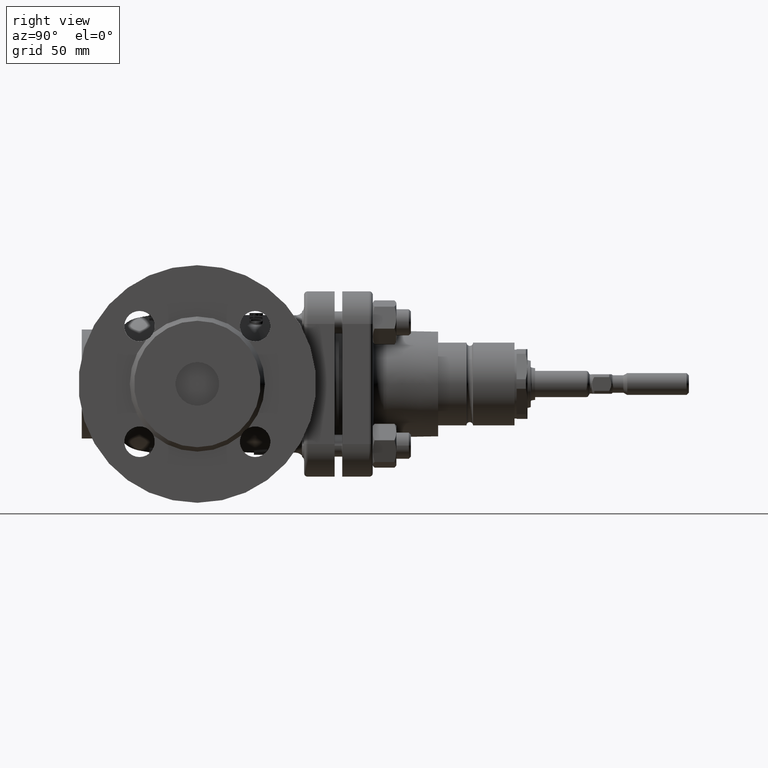
[diagram: clean part render]
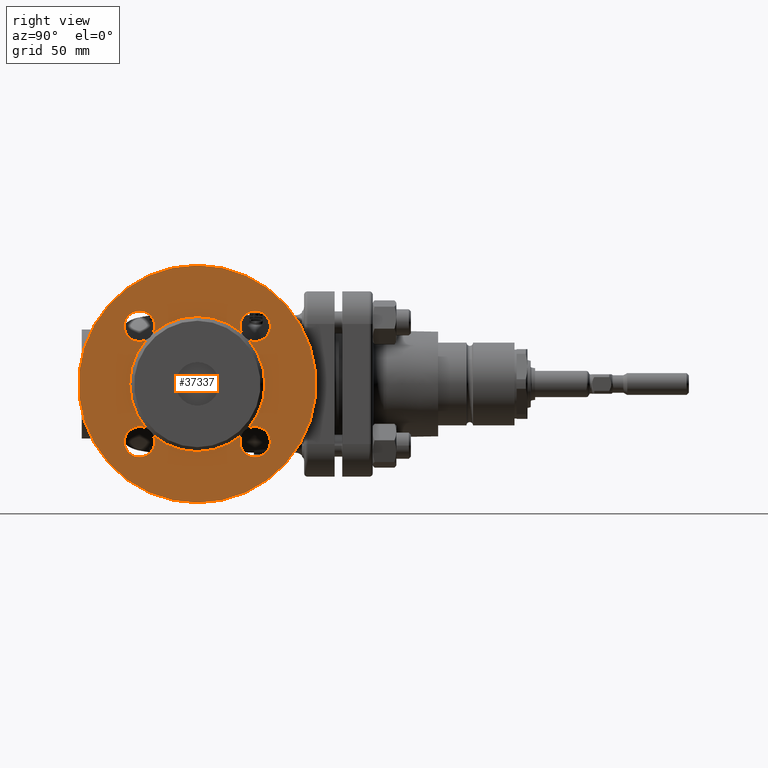
[diagram: same view with one face highlighted and labeled with its STEP entity id]
A machine part, right view. The second image highlights one B-rep face of the part: STEP entity #37337.
In plain terms, the highlighted planar face has unit normal (-1, 0, 0).
Its self-contained STEP definition (entity closure, byte-faithful):
#416 = CARTESIAN_POINT ( 'NONE',  ( 72.99999999999998600, -26.51650429449557900, -19.51650429449547300 ) ) ;
#1306 = AXIS2_PLACEMENT_3D ( 'NONE', #67372, #136699, #55719 ) ;
#2818 = EDGE_CURVE ( 'NONE', #44392, #64396, #104716, .T. ) ;
#2886 = DIRECTION ( 'NONE',  ( -1.000000000000000000, 0.0000000000000000000, 0.0000000000000000000 ) ) ;
#3361 = AXIS2_PLACEMENT_3D ( 'NONE', #30906, #111851, #42545 ) ;
#3386 = CARTESIAN_POINT ( 'NONE',  ( 72.99999999999998600, 23.52578713925625200, -20.18755407369614800 ) ) ;
#3436 = EDGE_CURVE ( 'NONE', #103085, #17519, #128215, .T. ) ;
#3555 = CARTESIAN_POINT ( 'NONE',  ( 72.99999999999997200, 0.0000000000000000000, 0.0000000000000000000 ) ) ;
#3711 = DIRECTION ( 'NONE',  ( 0.0000000000000000000, 0.0000000000000000000, -1.000000000000000000 ) ) ;
#3849 = AXIS2_PLACEMENT_3D ( 'NONE', #91302, #21960, #102915 ) ;
#4173 = CIRCLE ( 'NONE', #20848, 7.000000000000006200 ) ;
#4522 = CIRCLE ( 'NONE', #76555, 7.000000000000006200 ) ;
#5630 = CARTESIAN_POINT ( 'NONE',  ( 72.99999999999998600, 26.51650429449557900, 26.51650429449548000 ) ) ;
#5761 = DIRECTION ( 'NONE',  ( 0.0000000000000000000, 0.0000000000000000000, 1.000000000000000000 ) ) ;
#6263 = DIRECTION ( 'NONE',  ( 1.000000000000000000, -0.0000000000000000000, -0.0000000000000000000 ) ) ;
#6602 = EDGE_CURVE ( 'NONE', #117299, #30227, #117516, .T. ) ;
#7034 = DIRECTION ( 'NONE',  ( 0.0000000000000000000, 0.0000000000000000000, 1.000000000000000000 ) ) ;
#8475 = AXIS2_PLACEMENT_3D ( 'NONE', #64056, #145051, #75718 ) ;
#8672 = ORIENTED_EDGE ( 'NONE', *, *, #85368, .F. ) ;
#9138 = ORIENTED_EDGE ( 'NONE', *, *, #35328, .F. ) ;
#9780 = CARTESIAN_POINT ( 'NONE',  ( 72.99999999999998600, 26.51650429449538700, -26.51650429449567500 ) ) ;
#11227 = EDGE_CURVE ( 'NONE', #28808, #144049, #75787, .T. ) ;
#11425 = CARTESIAN_POINT ( 'NONE',  ( 72.99999999999998600, 0.0000000000000000000, 54.50000000000000000 ) ) ;
#16167 = CARTESIAN_POINT ( 'NONE',  ( 72.99999999999997200, 0.0000000000000000000, -31.00000000000001100 ) ) ;
#16202 = DIRECTION ( 'NONE',  ( 0.0000000000000000000, 0.0000000000000000000, 1.000000000000000000 ) ) ;
#16632 = CARTESIAN_POINT ( 'NONE',  ( 72.99999999999997200, 0.0000000000000000000, 0.0000000000000000000 ) ) ;
#17273 = DIRECTION ( 'NONE',  ( 0.0000000000000000000, 0.0000000000000000000, 1.000000000000000000 ) ) ;
#17519 = VERTEX_POINT ( 'NONE', #87640 ) ;
#19344 = AXIS2_PLACEMENT_3D ( 'NONE', #127143, #57866, #138837 ) ;
#20848 = AXIS2_PLACEMENT_3D ( 'NONE', #9780, #90791, #21434 ) ;
#21301 = EDGE_CURVE ( 'NONE', #144049, #28808, #62696, .T. ) ;
#21434 = DIRECTION ( 'NONE',  ( 0.0000000000000000000, 0.0000000000000000000, 1.000000000000000000 ) ) ;
#21960 = DIRECTION ( 'NONE',  ( 1.000000000000000000, -0.0000000000000000000, -0.0000000000000000000 ) ) ;
#22106 = CARTESIAN_POINT ( 'NONE',  ( 72.99999999999998600, -26.51650429449520300, 26.51650429449585600 ) ) ;
#22237 = CARTESIAN_POINT ( 'NONE',  ( 72.99999999999997200, 0.0000000000000000000, 0.0000000000000000000 ) ) ;
#22720 = CARTESIAN_POINT ( 'NONE',  ( 72.99999999999998600, -26.51650429449520300, 33.51650429449586700 ) ) ;
#23523 = VERTEX_POINT ( 'NONE', #96383 ) ;
#23995 = DIRECTION ( 'NONE',  ( -1.000000000000000000, 0.0000000000000000000, 0.0000000000000000000 ) ) ;
#24337 = CARTESIAN_POINT ( 'NONE',  ( 72.99999999999998600, -20.18755407369605900, -23.52578713925632000 ) ) ;
#25462 = CARTESIAN_POINT ( 'NONE',  ( 72.99999999999998600, 26.51650429449538700, -19.51650429449566800 ) ) ;
#27449 = EDGE_LOOP ( 'NONE', ( #34552, #147891 ) ) ;
#28277 = DIRECTION ( 'NONE',  ( 0.0000000000000000000, 0.0000000000000000000, 1.000000000000000000 ) ) ;
#28808 = VERTEX_POINT ( 'NONE', #11425 ) ;
#30227 = VERTEX_POINT ( 'NONE', #24337 ) ;
#30906 = CARTESIAN_POINT ( 'NONE',  ( 72.99999999999997200, 0.0000000000000000000, 0.0000000000000000000 ) ) ;
#31818 = ORIENTED_EDGE ( 'NONE', *, *, #2818, .T. ) ;
#32959 = ORIENTED_EDGE ( 'NONE', *, *, #3436, .F. ) ;
#33208 = CARTESIAN_POINT ( 'NONE',  ( 72.99999999999998600, -26.51650429449557900, -26.51650429449548000 ) ) ;
#33714 = DIRECTION ( 'NONE',  ( 0.0000000000000000000, -1.982541115402062500E-015, 1.000000000000000000 ) ) ;
#34552 = ORIENTED_EDGE ( 'NONE', *, *, #11227, .F. ) ;
#35328 = EDGE_CURVE ( 'NONE', #107994, #85523, #4173, .T. ) ;
#35464 = AXIS2_PLACEMENT_3D ( 'NONE', #144472, #75144, #5761 ) ;
#37337 = ADVANCED_FACE ( 'NONE', ( #118128, #83809 ), #49773, .F. ) ;
#37761 = CARTESIAN_POINT ( 'NONE',  ( 72.99999999999998600, -23.52578713925639800, -20.18755407369597100 ) ) ;
#39038 = AXIS2_PLACEMENT_3D ( 'NONE', #75915, #145742, #7034 ) ;
#39560 = CARTESIAN_POINT ( 'NONE',  ( 72.99999999999998600, -20.18755407369572900, 23.52578713925661100 ) ) ;
#41107 = CIRCLE ( 'NONE', #35464, 7.000000000000006200 ) ;
#41488 = AXIS2_PLACEMENT_3D ( 'NONE', #33208, #114167, #44866 ) ;
#42225 = CIRCLE ( 'NONE', #19344, 7.000000000000006200 ) ;
#42545 = DIRECTION ( 'NONE',  ( 0.0000000000000000000, 0.0000000000000000000, 1.000000000000000000 ) ) ;
#42705 = ORIENTED_EDGE ( 'NONE', *, *, #133016, .F. ) ;
#44392 = VERTEX_POINT ( 'NONE', #37761 ) ;
#44497 = CARTESIAN_POINT ( 'NONE',  ( 72.99999999999998600, 26.51650429449557900, 26.51650429449548000 ) ) ;
#44866 = DIRECTION ( 'NONE',  ( 0.0000000000000000000, -6.938893903907222100E-015, 1.000000000000000000 ) ) ;
#46225 = CARTESIAN_POINT ( 'NONE',  ( 72.99999999999998600, 20.18755407369589200, -23.52578713925647200 ) ) ;
#49393 = CARTESIAN_POINT ( 'NONE',  ( 72.99999999999998600, 26.51650429449557900, 19.51650429449547300 ) ) ;
#49457 = CARTESIAN_POINT ( 'NONE',  ( 72.99999999999998600, -26.51650429449557900, -26.51650429449548000 ) ) ;
#49773 = PLANE ( 'NONE',  #118815 ) ;
#50432 = CIRCLE ( 'NONE', #129467, 7.000000000000006200 ) ;
#54339 = EDGE_CURVE ( 'NONE', #74114, #124294, #4522, .T. ) ;
#55719 = DIRECTION ( 'NONE',  ( 0.0000000000000000000, 0.0000000000000000000, 1.000000000000000000 ) ) ;
#55761 = CARTESIAN_POINT ( 'NONE',  ( 72.99999999999998600, 6.674325055353075000E-015, -54.50000000000000000 ) ) ;
#56137 = DIRECTION ( 'NONE',  ( 0.0000000000000000000, 0.0000000000000000000, 1.000000000000000000 ) ) ;
#56529 = ORIENTED_EDGE ( 'NONE', *, *, #113723, .T. ) ;
#56769 = CARTESIAN_POINT ( 'NONE',  ( 72.99999999999997200, 0.0000000000000000000, 0.0000000000000000000 ) ) ;
#57132 = DIRECTION ( 'NONE',  ( 0.0000000000000000000, 0.0000000000000000000, 1.000000000000000000 ) ) ;
#57422 = AXIS2_PLACEMENT_3D ( 'NONE', #95832, #23995, #105944 ) ;
#57866 = DIRECTION ( 'NONE',  ( 1.000000000000000000, -0.0000000000000000000, -0.0000000000000000000 ) ) ;
#58764 = AXIS2_PLACEMENT_3D ( 'NONE', #75646, #6263, #87280 ) ;
#61114 = DIRECTION ( 'NONE',  ( 0.0000000000000000000, 0.0000000000000000000, 1.000000000000000000 ) ) ;
#61167 = VERTEX_POINT ( 'NONE', #117001 ) ;
#62696 = CIRCLE ( 'NONE', #57422, 54.50000000000000000 ) ;
#63765 = CARTESIAN_POINT ( 'NONE',  ( 72.99999999999998600, 26.51650429449557900, 33.51650429449548300 ) ) ;
#63960 = VERTEX_POINT ( 'NONE', #46225 ) ;
#64056 = CARTESIAN_POINT ( 'NONE',  ( 72.99999999999998600, 26.51650429449538700, -26.51650429449567500 ) ) ;
#64396 = VERTEX_POINT ( 'NONE', #71552 ) ;
#67372 = CARTESIAN_POINT ( 'NONE',  ( 72.99999999999998600, 0.0000000000000000000, 0.0000000000000000000 ) ) ;
#68412 = DIRECTION ( 'NONE',  ( 0.0000000000000000000, 0.0000000000000000000, 1.000000000000000000 ) ) ;
#69221 = CIRCLE ( 'NONE', #129936, 7.000000000000009800 ) ;
#70981 = CARTESIAN_POINT ( 'NONE',  ( 72.99999999999998600, 26.51650429449538700, -33.51650429449568200 ) ) ;
#71552 = CARTESIAN_POINT ( 'NONE',  ( 72.99999999999998600, -23.52578713925611700, 20.18755407369630800 ) ) ;
#71929 = CIRCLE ( 'NONE', #58764, 7.000000000000006200 ) ;
#72286 = CARTESIAN_POINT ( 'NONE',  ( 72.99999999999997200, 0.0000000000000000000, 0.0000000000000000000 ) ) ;
#72786 = VERTEX_POINT ( 'NONE', #74644 ) ;
#73104 = DIRECTION ( 'NONE',  ( -1.000000000000000000, 0.0000000000000000000, 0.0000000000000000000 ) ) ;
#73539 = ORIENTED_EDGE ( 'NONE', *, *, #107726, .F. ) ;
#74114 = VERTEX_POINT ( 'NONE', #148441 ) ;
#74644 = CARTESIAN_POINT ( 'NONE',  ( 72.99999999999997200, -3.796405077356796700E-015, 31.00000000000001100 ) ) ;
#75144 = DIRECTION ( 'NONE',  ( 1.000000000000000000, -0.0000000000000000000, -0.0000000000000000000 ) ) ;
#75646 = CARTESIAN_POINT ( 'NONE',  ( 72.99999999999998600, 26.51650429449538700, -26.51650429449567500 ) ) ;
#75718 = DIRECTION ( 'NONE',  ( 0.0000000000000000000, 0.0000000000000000000, 1.000000000000000000 ) ) ;
#75787 = CIRCLE ( 'NONE', #1306, 54.50000000000000000 ) ;
#75915 = CARTESIAN_POINT ( 'NONE',  ( 72.99999999999998600, -26.51650429449520300, 26.51650429449585600 ) ) ;
#76555 = AXIS2_PLACEMENT_3D ( 'NONE', #44497, #125410, #56137 ) ;
#76705 = CIRCLE ( 'NONE', #3849, 7.000000000000009800 ) ;
#79452 = ORIENTED_EDGE ( 'NONE', *, *, #99703, .F. ) ;
#81496 = ORIENTED_EDGE ( 'NONE', *, *, #54339, .F. ) ;
#83185 = EDGE_LOOP ( 'NONE', ( #116420, #109092, #107030, #73539, #42705, #81496, #138034, #9138, #136645, #111867, #56529, #86892, #8672, #122413, #79452, #31818, #115962, #32959 ) ) ;
#83809 = FACE_BOUND ( 'NONE', #83185, .T. ) ;
#83941 = DIRECTION ( 'NONE',  ( 0.0000000000000000000, 0.0000000000000000000, 1.000000000000000000 ) ) ;
#85368 = EDGE_CURVE ( 'NONE', #23523, #30227, #50432, .T. ) ;
#85523 = VERTEX_POINT ( 'NONE', #3386 ) ;
#86647 = DIRECTION ( 'NONE',  ( 1.000000000000000000, -0.0000000000000000000, -0.0000000000000000000 ) ) ;
#86892 = ORIENTED_EDGE ( 'NONE', *, *, #6602, .T. ) ;
#87280 = DIRECTION ( 'NONE',  ( 0.0000000000000000000, 0.0000000000000000000, 1.000000000000000000 ) ) ;
#87433 = CIRCLE ( 'NONE', #109560, 31.00000000000001100 ) ;
#87640 = CARTESIAN_POINT ( 'NONE',  ( 72.99999999999998600, -26.51650429449520300, 19.51650429449584900 ) ) ;
#88499 = EDGE_CURVE ( 'NONE', #132957, #72786, #102803, .T. ) ;
#90791 = DIRECTION ( 'NONE',  ( 1.000000000000000000, -0.0000000000000000000, -0.0000000000000000000 ) ) ;
#91302 = CARTESIAN_POINT ( 'NONE',  ( 72.99999999999998600, -26.51650429449520300, 26.51650429449585600 ) ) ;
#93958 = CIRCLE ( 'NONE', #114804, 7.000000000000006200 ) ;
#95318 = CARTESIAN_POINT ( 'NONE',  ( 72.99999999999998600, -31.00000000000001100, 0.0000000000000000000 ) ) ;
#95517 = EDGE_CURVE ( 'NONE', #63960, #141780, #147900, .T. ) ;
#95832 = CARTESIAN_POINT ( 'NONE',  ( 72.99999999999998600, 0.0000000000000000000, 0.0000000000000000000 ) ) ;
#96383 = CARTESIAN_POINT ( 'NONE',  ( 72.99999999999998600, -26.51650429449557900, -33.51650429449548300 ) ) ;
#97591 = DIRECTION ( 'NONE',  ( -1.000000000000000000, 0.0000000000000000000, 0.0000000000000000000 ) ) ;
#98110 = CIRCLE ( 'NONE', #108673, 31.00000000000001100 ) ;
#99703 = EDGE_CURVE ( 'NONE', #44392, #104475, #149397, .T. ) ;
#102803 = CIRCLE ( 'NONE', #115899, 31.00000000000001100 ) ;
#102915 = DIRECTION ( 'NONE',  ( 0.0000000000000000000, 0.0000000000000000000, 1.000000000000000000 ) ) ;
#103054 = DIRECTION ( 'NONE',  ( 1.000000000000000000, -0.0000000000000000000, -0.0000000000000000000 ) ) ;
#103085 = VERTEX_POINT ( 'NONE', #22720 ) ;
#104475 = VERTEX_POINT ( 'NONE', #416 ) ;
#104716 = CIRCLE ( 'NONE', #119471, 31.00000000000001100 ) ;
#105944 = DIRECTION ( 'NONE',  ( 0.0000000000000000000, 0.0000000000000000000, 1.000000000000000000 ) ) ;
#107030 = ORIENTED_EDGE ( 'NONE', *, *, #133362, .T. ) ;
#107416 = EDGE_CURVE ( 'NONE', #17519, #64396, #76705, .T. ) ;
#107726 = EDGE_CURVE ( 'NONE', #145118, #61167, #42225, .T. ) ;
#107994 = VERTEX_POINT ( 'NONE', #25462 ) ;
#108302 = DIRECTION ( 'NONE',  ( -1.000000000000000000, 0.0000000000000000000, 0.0000000000000000000 ) ) ;
#108673 = AXIS2_PLACEMENT_3D ( 'NONE', #72286, #2886, #83941 ) ;
#109092 = ORIENTED_EDGE ( 'NONE', *, *, #88499, .T. ) ;
#109560 = AXIS2_PLACEMENT_3D ( 'NONE', #16632, #97591, #28277 ) ;
#110282 = EDGE_CURVE ( 'NONE', #74114, #85523, #87433, .T. ) ;
#111428 = EDGE_CURVE ( 'NONE', #132957, #103085, #69221, .T. ) ;
#111851 = DIRECTION ( 'NONE',  ( -1.000000000000000000, 0.0000000000000000000, 0.0000000000000000000 ) ) ;
#111867 = ORIENTED_EDGE ( 'NONE', *, *, #95517, .F. ) ;
#113723 = EDGE_CURVE ( 'NONE', #63960, #117299, #98110, .T. ) ;
#114167 = DIRECTION ( 'NONE',  ( 1.000000000000000000, -0.0000000000000000000, -0.0000000000000000000 ) ) ;
#114804 = AXIS2_PLACEMENT_3D ( 'NONE', #5630, #86647, #17273 ) ;
#115899 = AXIS2_PLACEMENT_3D ( 'NONE', #56769, #137753, #68412 ) ;
#115962 = ORIENTED_EDGE ( 'NONE', *, *, #107416, .F. ) ;
#116420 = ORIENTED_EDGE ( 'NONE', *, *, #111428, .F. ) ;
#117001 = CARTESIAN_POINT ( 'NONE',  ( 72.99999999999998600, 20.18755407369605900, 23.52578713925632000 ) ) ;
#117299 = VERTEX_POINT ( 'NONE', #16167 ) ;
#117516 = CIRCLE ( 'NONE', #144807, 31.00000000000001100 ) ;
#118128 = FACE_OUTER_BOUND ( 'NONE', #27449, .T. ) ;
#118815 = AXIS2_PLACEMENT_3D ( 'NONE', #95318, #73104, #3711 ) ;
#119471 = AXIS2_PLACEMENT_3D ( 'NONE', #22237, #126415, #57132 ) ;
#122413 = ORIENTED_EDGE ( 'NONE', *, *, #141352, .F. ) ;
#124294 = VERTEX_POINT ( 'NONE', #49393 ) ;
#125410 = DIRECTION ( 'NONE',  ( 1.000000000000000000, -0.0000000000000000000, -0.0000000000000000000 ) ) ;
#126415 = DIRECTION ( 'NONE',  ( -1.000000000000000000, 0.0000000000000000000, 0.0000000000000000000 ) ) ;
#127143 = CARTESIAN_POINT ( 'NONE',  ( 72.99999999999998600, 26.51650429449557900, 26.51650429449548000 ) ) ;
#128215 = CIRCLE ( 'NONE', #39038, 7.000000000000009800 ) ;
#129467 = AXIS2_PLACEMENT_3D ( 'NONE', #49457, #130395, #61114 ) ;
#129936 = AXIS2_PLACEMENT_3D ( 'NONE', #22106, #103054, #33714 ) ;
#130395 = DIRECTION ( 'NONE',  ( 1.000000000000000000, -0.0000000000000000000, -0.0000000000000000000 ) ) ;
#132957 = VERTEX_POINT ( 'NONE', #39560 ) ;
#133016 = EDGE_CURVE ( 'NONE', #124294, #145118, #93958, .T. ) ;
#133362 = EDGE_CURVE ( 'NONE', #72786, #61167, #144680, .T. ) ;
#136645 = ORIENTED_EDGE ( 'NONE', *, *, #141403, .F. ) ;
#136699 = DIRECTION ( 'NONE',  ( -1.000000000000000000, 0.0000000000000000000, 0.0000000000000000000 ) ) ;
#137753 = DIRECTION ( 'NONE',  ( -1.000000000000000000, 0.0000000000000000000, 0.0000000000000000000 ) ) ;
#138034 = ORIENTED_EDGE ( 'NONE', *, *, #110282, .T. ) ;
#138837 = DIRECTION ( 'NONE',  ( 0.0000000000000000000, 0.0000000000000000000, 1.000000000000000000 ) ) ;
#141352 = EDGE_CURVE ( 'NONE', #104475, #23523, #41107, .T. ) ;
#141403 = EDGE_CURVE ( 'NONE', #141780, #107994, #71929, .T. ) ;
#141780 = VERTEX_POINT ( 'NONE', #70981 ) ;
#144049 = VERTEX_POINT ( 'NONE', #55761 ) ;
#144472 = CARTESIAN_POINT ( 'NONE',  ( 72.99999999999998600, -26.51650429449557900, -26.51650429449548000 ) ) ;
#144680 = CIRCLE ( 'NONE', #3361, 31.00000000000001100 ) ;
#144807 = AXIS2_PLACEMENT_3D ( 'NONE', #3555, #108302, #16202 ) ;
#145051 = DIRECTION ( 'NONE',  ( 1.000000000000000000, -0.0000000000000000000, -0.0000000000000000000 ) ) ;
#145118 = VERTEX_POINT ( 'NONE', #63765 ) ;
#145742 = DIRECTION ( 'NONE',  ( 1.000000000000000000, -0.0000000000000000000, -0.0000000000000000000 ) ) ;
#147891 = ORIENTED_EDGE ( 'NONE', *, *, #21301, .F. ) ;
#147900 = CIRCLE ( 'NONE', #8475, 7.000000000000006200 ) ;
#148441 = CARTESIAN_POINT ( 'NONE',  ( 72.99999999999998600, 23.52578713925639800, 20.18755407369597100 ) ) ;
#149397 = CIRCLE ( 'NONE', #41488, 7.000000000000006200 ) ;